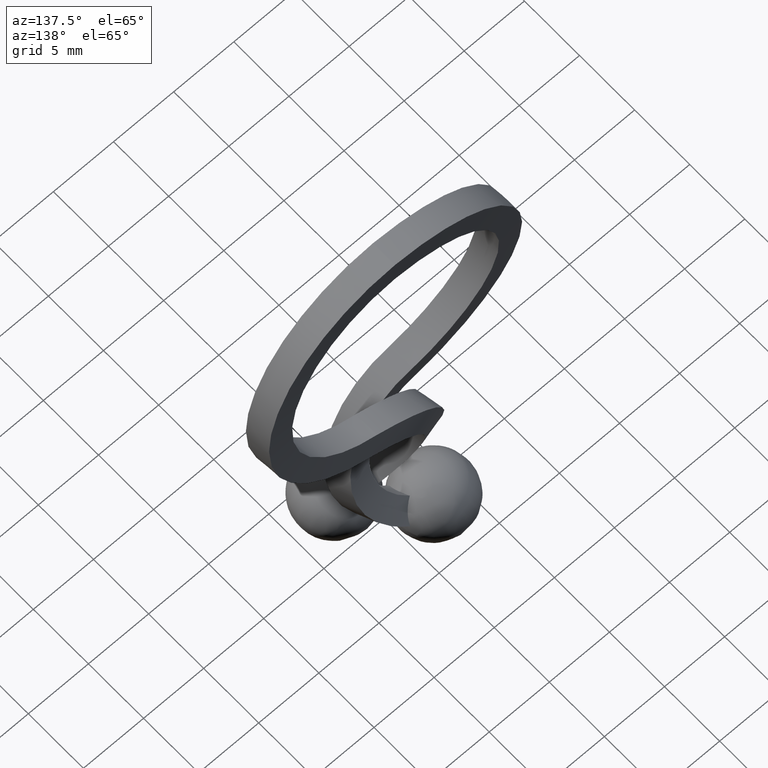
[diagram: clean part render]
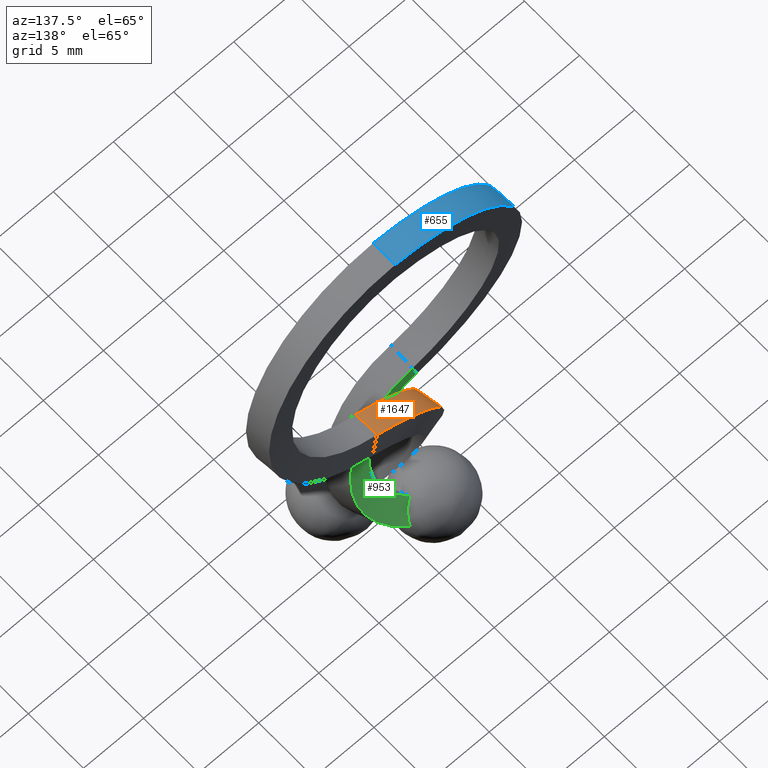
[diagram: same view with three faces highlighted in distinct colors, each labeled with its STEP entity id]
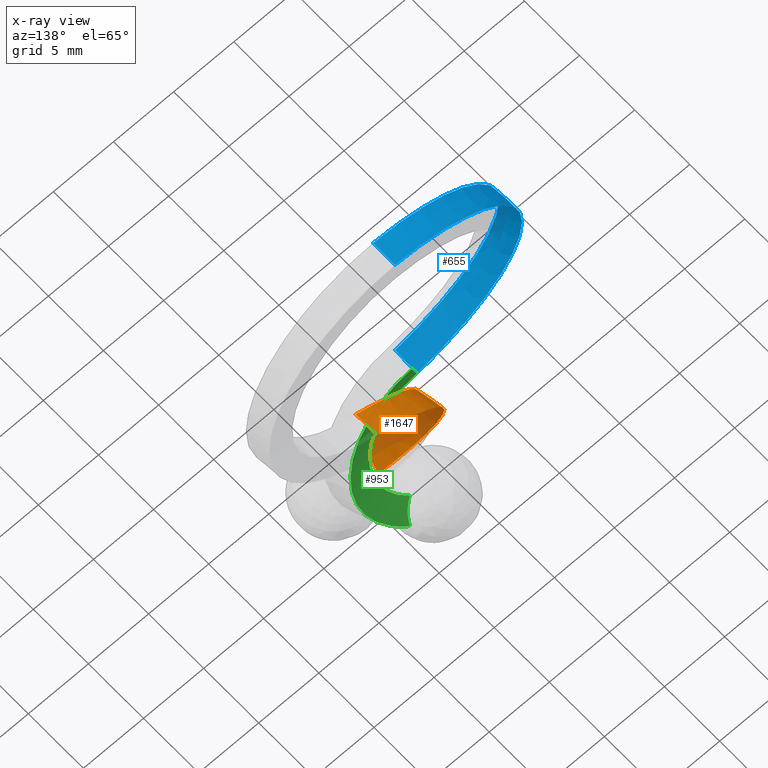
[diagram: x-ray of the same camera — body ghosted, the three highlighted faces saturated]
A machine part, auxiliary view with three faces highlighted in distinct colors.
The next image is the same camera in x-ray (body ghosted, the three faces saturated) — at least one of them is partly hidden behind the body in this view.
Their STEP definitions:

[orange] entity #1647 — the highlighted face is a freeform B-spline surface patch.
#207=CARTESIAN_POINT('',(-0.562989896993317,-2.993018793894280,-22.946073593699801));
#208=VERTEX_POINT('',#207);
#209=CARTESIAN_POINT('',(-0.674003210500367,-1.294515618744942,-24.002159655791001));
#210=VERTEX_POINT('',#209);
#211=CARTESIAN_POINT('',(-0.562989896993317,-2.993018793894280,-22.946073593699801));
#212=CARTESIAN_POINT('',(-0.625487875216806,-2.838644896647585,-22.992262270440150));
#213=CARTESIAN_POINT('',(-0.675076408019268,-2.684167226220337,-23.049990980960551));
#214=CARTESIAN_POINT('',(-0.748336848174747,-2.376842553886166,-23.189612446248589));
#215=CARTESIAN_POINT('',(-0.771128858992046,-2.227837443091896,-23.269727561428478));
#216=CARTESIAN_POINT('',(-0.785350560071650,-2.011152163125904,-23.404942437210689));
#217=CARTESIAN_POINT('',(-0.786735567627115,-1.940064008534641,-23.452531355143272));
#218=CARTESIAN_POINT('',(-0.783627493370677,-1.835152699307017,-23.527734830163389));
#219=CARTESIAN_POINT('',(-0.781716551858957,-1.800405793849225,-23.553492239177800));
#220=CARTESIAN_POINT('',(-0.776184612336564,-1.732169049288397,-23.605764375316081));
#221=CARTESIAN_POINT('',(-0.772564743885569,-1.698605095555714,-23.632329017684640));
#222=CARTESIAN_POINT('',(-0.750246223486381,-1.533481926798328,-23.767221258280770));
#223=CARTESIAN_POINT('',(-0.719019334016568,-1.409955380388857,-23.881721477389600));
#224=CARTESIAN_POINT('',(-0.674003210500367,-1.294515618744942,-24.002159655791001));
#225=B_SPLINE_CURVE_WITH_KNOTS('',3,(#211,#212,#213,#214,#215,#216,#217,#218,#219,#220,#221,#222,#223,#224),.UNSPECIFIED.,.F.,.U.,(4,2,2,2,2,2,4),(0.0,0.249999999999999,0.499999999999998,0.624999999999999,0.687500000000000,0.750000000000000,1.0),.UNSPECIFIED.);
#226=EDGE_CURVE('',#208,#210,#225,.T.);
#1181=CARTESIAN_POINT('',(2.358671733415280,1.960175868653700,-8.694603899422249));
#1182=VERTEX_POINT('',#1181);
#1202=CARTESIAN_POINT('',(2.343019980547970,-0.026249401664831,-8.919620267446240));
#1203=VERTEX_POINT('',#1202);
#1204=CARTESIAN_POINT('',(2.358671733415280,1.960175868653700,-8.694603899422249));
#1205=CARTESIAN_POINT('',(2.357048697557785,1.751445114865986,-8.718243050517476));
#1206=CARTESIAN_POINT('',(2.353708493728335,1.321887858601402,-8.766891240021826));
#1207=CARTESIAN_POINT('',(2.348404500502874,0.659749568949974,-8.841921069176765));
#1208=CARTESIAN_POINT('',(2.344845590262677,0.206337049034967,-8.893276524201962));
#1209=CARTESIAN_POINT('',(2.343019980547970,-0.026249401664831,-8.919620267446240));
#1210=B_SPLINE_CURVE_WITH_KNOTS('',3,(#1204,#1205,#1206,#1207,#1208,#1209),.UNSPECIFIED.,.F.,.U.,(4,1,1,4),(0.0,0.315074572516536,0.648407421386868,0.999492347618316),.UNSPECIFIED.);
#1211=EDGE_CURVE('',#1182,#1203,#1210,.T.);
#1540=CARTESIAN_POINT('',(2.435627884830732,-0.041603160508839,-8.893182786935876));
#1541=CARTESIAN_POINT('',(2.455156732027250,0.626669428963493,-8.813143741804492));
#1542=CARTESIAN_POINT('',(2.474685579223758,1.294942018435824,-8.733104696673111));
#1543=CARTESIAN_POINT('',(2.494214426420274,1.963214607908153,-8.653065651541725));
#1544=CARTESIAN_POINT('',(2.390609460111038,-0.038970524950691,-8.906556444197138));
#1545=CARTESIAN_POINT('',(2.410323750397735,0.629290150838547,-8.826466795996851));
#1546=CARTESIAN_POINT('',(2.430038040684427,1.297550826627786,-8.746377147796563));
#1547=CARTESIAN_POINT('',(2.449752330971123,1.965811502417020,-8.666287499596283));
#1548=CARTESIAN_POINT('',(2.347387594928677,-0.036441385811843,-8.919389829881911));
#1549=CARTESIAN_POINT('',(2.367822606064192,0.631775778087387,-8.839091803988811));
#1550=CARTESIAN_POINT('',(2.388257617199725,1.299992941986615,-8.758793778095713));
#1551=CARTESIAN_POINT('',(2.408692628335240,1.968210105885839,-8.678495752202620));
#1552=CARTESIAN_POINT('',(2.102475191818294,-0.022210721223379,-8.992530475569513));
#1553=CARTESIAN_POINT('',(2.119109092395057,0.646245320485338,-8.913292018626263));
#1554=CARTESIAN_POINT('',(2.135742992971732,1.314701362194054,-8.834053561683001));
#1555=CARTESIAN_POINT('',(2.152376893548495,1.983157403902795,-8.754815104739754));
#1556=CARTESIAN_POINT('',(1.887747769234420,-0.011900821895416,-9.065749893773564));
#1557=CARTESIAN_POINT('',(1.895283882469431,0.657066682450753,-8.989300434595419));
#1558=CARTESIAN_POINT('',(1.902819995704504,1.326034186796918,-8.912850975417436));
#1559=CARTESIAN_POINT('',(1.910356108939524,1.995001691143075,-8.836401516239256));
#1560=CARTESIAN_POINT('',(1.081361664683047,0.018325724848009,-9.376350838812126));
#1561=CARTESIAN_POINT('',(1.065054476162237,0.688311871905234,-9.308561111506537));
#1562=CARTESIAN_POINT('',(1.048747287641339,1.358298018962450,-9.240771384201091));
#1563=CARTESIAN_POINT('',(1.032440099120590,2.028284166019713,-9.172981656896008));
#1564=CARTESIAN_POINT('',(-0.268718344838542,0.024283840412859,-10.083735648048490));
#1565=CARTESIAN_POINT('',(-0.325056766544193,0.694678461067932,-10.035947807776211));
#1566=CARTESIAN_POINT('',(-0.381395188249991,1.365073081723000,-9.988159967503711));
#1567=CARTESIAN_POINT('',(-0.437733609955978,2.035467702377960,-9.940372127230786));
#1568=CARTESIAN_POINT('',(-1.385580328448778,-0.079532622516133,-11.125272625969179));
#1569=CARTESIAN_POINT('',(-1.475307469896623,0.588040997510264,-11.107435708441541));
#1570=CARTESIAN_POINT('',(-1.565034611344558,1.255614617536659,-11.089598790913721));
#1571=CARTESIAN_POINT('',(-1.654761752792166,1.923188237563209,-11.071761873386560));
#1572=CARTESIAN_POINT('',(-2.978773532074123,-0.356711011889146,-13.152719778599280));
#1573=CARTESIAN_POINT('',(-3.116453001047982,0.303088718376132,-13.193518952021680));
#1574=CARTESIAN_POINT('',(-3.254132470021838,0.962888448641411,-13.234318125444091));
#1575=CARTESIAN_POINT('',(-3.391811938996385,1.622688178906342,-13.275117298865110));
#1576=CARTESIAN_POINT('',(-3.597441051600312,-0.676096921902736,-14.828632066757219));
#1577=CARTESIAN_POINT('',(-3.754272215556001,-0.025467072602755,-14.918301897446590));
#1578=CARTESIAN_POINT('',(-3.911103379511689,0.625162776697225,-15.007971728130419));
#1579=CARTESIAN_POINT('',(-4.067934543467378,1.275792625997379,-15.097641558819779));
#1580=CARTESIAN_POINT('',(-3.713292973980882,-1.463021158562372,-18.193797158275711));
#1581=CARTESIAN_POINT('',(-3.875533448445007,-0.835230248988561,-18.382244752117931));
#1582=CARTESIAN_POINT('',(-4.037773922909133,-0.207439339414749,-18.570692345965721));
#1583=CARTESIAN_POINT('',(-4.200014397373258,0.420351570158890,-18.759139939807930));
#1584=CARTESIAN_POINT('',(-3.210171670300730,-1.928482973424104,-19.874170066155308));
#1585=CARTESIAN_POINT('',(-3.358655486367866,-1.314300855910614,-20.112264114129118));
#1586=CARTESIAN_POINT('',(-3.507139302435005,-0.700118738397124,-20.350358162100161));
#1587=CARTESIAN_POINT('',(-3.655623118500759,-0.085936620884325,-20.588452210073971));
#1588=CARTESIAN_POINT('',(-1.733592412017778,-2.613185546329875,-21.946505166967089));
#1589=CARTESIAN_POINT('',(-1.839994449289251,-2.019150614336765,-22.246318218834791));
#1590=CARTESIAN_POINT('',(-1.946396486560719,-1.425115682343662,-22.546131270703960));
#1591=CARTESIAN_POINT('',(-2.052798523832910,-0.831080750350197,-22.845944322571679));
#1592=CARTESIAN_POINT('',(-1.100306821503991,-2.843331970508324,-22.568768694557701));
#1593=CARTESIAN_POINT('',(-1.188501297285866,-2.256092915627096,-22.887223370840349));
#1594=CARTESIAN_POINT('',(-1.276695773066943,-1.668853860745329,-23.205678047121680));
#1595=CARTESIAN_POINT('',(-1.364890248849199,-1.081614805863503,-23.524132723404509));
#1596=CARTESIAN_POINT('',(-0.378939271157280,-3.056739904274532,-23.073006872211732));
#1597=CARTESIAN_POINT('',(-0.446271526822792,-2.475825852675428,-23.406687064122529));
#1598=CARTESIAN_POINT('',(-0.513603782487166,-1.894911801075551,-23.740367256030439));
#1599=CARTESIAN_POINT('',(-0.580936038152733,-1.313997749475833,-24.074047447941499));
#1600=B_SPLINE_SURFACE_WITH_KNOTS('',3,3,((#1540,#1544,#1548,#1552,#1556,#1560,#1564,#1568,#1572,#1576,#1580,#1584,#1588,#1592,#1596),(#1541,#1545,#1549,#1553,#1557,#1561,#1565,#1569,#1573,#1577,#1581,#1585,#1589,#1593,#1597),(#1542,#1546,#1550,#1554,#1558,#1562,#1566,#1570,#1574,#1578,#1582,#1586,#1590,#1594,#1598),(#1543,#1547,#1551,#1555,#1559,#1563,#1567,#1571,#1575,#1579,#1583,#1587,#1591,#1595,#1599)),.UNSPECIFIED.,.F.,.F.,.U.,(4,4),(4,2,2,1,2,2,2,4),(0.0,2.020002729036798),(0.0,0.177435660538620,0.903142439019978,3.080262774464051,5.983089888389480,11.788744116240339,17.594398344091200,20.637143195492381),.UNSPECIFIED.);
#1601=ORIENTED_EDGE('',*,*,#226,.F.);
#1602=CARTESIAN_POINT('',(2.343019980547970,-0.026249401664831,-8.919620267446240));
#1603=CARTESIAN_POINT('',(2.328873158148021,-0.025424552240254,-8.923833127507283));
#1604=CARTESIAN_POINT('',(2.314454788468011,-0.024585064959228,-8.928131868227892));
#1605=CARTESIAN_POINT('',(2.102724740778106,-0.012282224094438,-8.991361900011517));
#1606=CARTESIAN_POINT('',(1.887861882150655,-0.001958220313909,-9.064595574533961));
#1607=CARTESIAN_POINT('',(1.484445463366080,0.013149086828943,-9.220042203482507));
#1608=CARTESIAN_POINT('',(1.285685964906115,0.018477122987230,-9.305505683612408));
#1609=CARTESIAN_POINT('',(0.700010365309183,0.027742017279396,-9.584341388283615));
#1610=CARTESIAN_POINT('',(0.323713400784969,0.024944345095048,-9.800214340787839));
#1611=CARTESIAN_POINT('',(-0.748541599144377,-0.010255868453404,-10.529605563832639));
#1612=CARTESIAN_POINT('',(-1.386859524459401,-0.069622496764861,-11.125009821918690));
#1613=CARTESIAN_POINT('',(-2.980817194532098,-0.346910563989227,-13.153331408402520));
#1614=CARTESIAN_POINT('',(-3.599769519285019,-0.666432502432129,-14.829968625182101));
#1615=CARTESIAN_POINT('',(-3.715702373559793,-1.453695651395375,-18.196599076363089));
#1616=CARTESIAN_POINT('',(-3.212376982986500,-1.919359455819912,-19.877708548537061));
#1617=CARTESIAN_POINT('',(-1.778579756744054,-2.584232713626742,-21.890038046632839));
#1618=CARTESIAN_POINT('',(-1.208975882375264,-2.795219975416260,-22.466446165435251));
#1619=CARTESIAN_POINT('',(-0.562989896993317,-2.993018793894280,-22.946073593699801));
#1620=B_SPLINE_CURVE_WITH_KNOTS('',3,(#1602,#1603,#1604,#1605,#1606,#1607,#1608,#1609,#1610,#1611,#1612,#1613,#1614,#1615,#1616,#1617,#1618,#1619),.UNSPECIFIED.,.F.,.U.,(4,2,2,2,2,2,2,2,4),(-0.002363725979825,0.0,0.031250000000000,0.062500000000000,0.125000000000000,0.250000000000000,0.500000000000000,0.750000000000000,0.869828844565417),.UNSPECIFIED.);
#1621=EDGE_CURVE('',#1203,#208,#1620,.T.);
#1622=ORIENTED_EDGE('',*,*,#1621,.F.);
#1623=ORIENTED_EDGE('',*,*,#1211,.F.);
#1624=CARTESIAN_POINT('',(2.358671733415280,1.960175868653700,-8.694603899422249));
#1625=CARTESIAN_POINT('',(2.358454592620007,1.960188537752270,-8.694668553772393));
#1626=CARTESIAN_POINT('',(2.358237279756053,1.960201216811504,-8.694733259686863));
#1627=CARTESIAN_POINT('',(2.152106569537881,1.972227781500567,-8.756109950193906));
#1628=CARTESIAN_POINT('',(1.910220836533945,1.984079235097631,-8.837624558718229));
#1629=CARTESIAN_POINT('',(1.471389839082284,2.000713492751328,-9.005937561155770));
#1630=CARTESIAN_POINT('',(1.255166186935915,2.006612031072719,-9.098514206081088));
#1631=CARTESIAN_POINT('',(0.617981927692510,2.017004876738490,-9.400664737509512));
#1632=CARTESIAN_POINT('',(0.208525575026950,2.014179772950690,-9.634719548518111));
#1633=CARTESIAN_POINT('',(-0.958419201950700,1.976560978559862,-10.425883596719890));
#1634=CARTESIAN_POINT('',(-1.653391858606968,1.912452860906464,-11.072117693143040));
#1635=CARTESIAN_POINT('',(-3.389782446386424,1.612232839395255,-13.274588682967581));
#1636=CARTESIAN_POINT('',(-4.065617755851418,1.265596714494927,-15.096372623928239));
#1637=CARTESIAN_POINT('',(-4.197611814971455,0.410729745211632,-18.756376339238159));
#1638=CARTESIAN_POINT('',(-3.653422262711807,-0.095245302167541,-20.584938206898279));
#1639=CARTESIAN_POINT('',(-2.073374750477606,-0.829664972212943,-22.810295247553999));
#1640=CARTESIAN_POINT('',(-1.418662508044106,-1.070212742831414,-23.464727506197750));
#1641=CARTESIAN_POINT('',(-0.674003210500367,-1.294515618744942,-24.002159655791001));
#1642=B_SPLINE_CURVE_WITH_KNOTS('',3,(#1624,#1625,#1626,#1627,#1628,#1629,#1630,#1631,#1632,#1633,#1634,#1635,#1636,#1637,#1638,#1639,#1640,#1641),.UNSPECIFIED.,.F.,.U.,(4,2,2,2,2,2,2,2,4),(0.113561345420679,0.113594351732374,0.144844351732374,0.176094351732374,0.238594351732374,0.363594351732374,0.613594351732374,0.863594351732374,0.989350646064616),.UNSPECIFIED.);
#1643=EDGE_CURVE('',#1182,#210,#1642,.T.);
#1644=ORIENTED_EDGE('',*,*,#1643,.T.);
#1645=EDGE_LOOP('',(#1601,#1622,#1623,#1644));
#1646=FACE_OUTER_BOUND('',#1645,.T.);
#1647=ADVANCED_FACE('',(#1646),#1600,.T.);

[blue] entity #655 — the highlighted face is a freeform B-spline surface patch.
#488=CARTESIAN_POINT('',(-2.901770497624195,-0.185794630355313,-10.828303356464280));
#489=VERTEX_POINT('',#488);
#503=CARTESIAN_POINT('',(0.0,1.000000000000086,11.0));
#504=VERTEX_POINT('',#503);
#505=CARTESIAN_POINT('',(0.0,1.000000000000086,11.0));
#506=CARTESIAN_POINT('',(-2.664277957426825,1.017030261674924,10.978275083949059));
#507=CARTESIAN_POINT('',(-5.290744502438060,0.979325945925578,9.970263999405550));
#508=CARTESIAN_POINT('',(-9.271798712087030,0.812699328185356,6.460302657272890));
#509=CARTESIAN_POINT('',(-10.600032091296219,0.684426235500527,3.973371185152395));
#510=CARTESIAN_POINT('',(-11.300669097243819,0.398922150897542,-1.282481407660156));
#511=CARTESIAN_POINT('',(-10.670089990874560,0.242906599326255,-4.029027453369905));
#512=CARTESIAN_POINT('',(-8.477636952178450,0.044597705471169,-7.347805872762359));
#513=CARTESIAN_POINT('',(-7.548111985963731,-0.015490846082073,-8.320557902948611));
#514=CARTESIAN_POINT('',(-5.939456721808130,-0.091189688910444,-9.491801968244412));
#515=CARTESIAN_POINT('',(-5.368093919346840,-0.114013566193409,-9.834246619753341));
#516=CARTESIAN_POINT('',(-4.472024684063484,-0.144085488561915,-10.267691713423799));
#517=CARTESIAN_POINT('',(-4.166840199878131,-0.153417204606867,-10.398835482279560));
#518=CARTESIAN_POINT('',(-3.545728627383425,-0.170625282852517,-10.633442993420539));
#519=CARTESIAN_POINT('',(-3.218238728805475,-0.178758186316790,-10.740118986506500));
#520=CARTESIAN_POINT('',(-2.906950619990810,-0.185679167305744,-10.826860227044580));
#521=CARTESIAN_POINT('',(-2.904355745204612,-0.185736859965535,-10.827583293315090));
#522=CARTESIAN_POINT('',(-2.901770497624195,-0.185794630355313,-10.828303356464280));
#523=B_SPLINE_CURVE_WITH_KNOTS('',3,(#505,#506,#507,#508,#509,#510,#511,#512,#513,#514,#515,#516,#517,#518,#519,#520,#521,#522),.UNSPECIFIED.,.F.,.U.,(4,2,2,2,2,2,2,2,4),(0.0,0.250000000000000,0.500000000000000,0.750000000000000,0.875000000000000,0.937500000000000,0.968750000000000,1.0,1.000263757885305),.UNSPECIFIED.);
#524=EDGE_CURVE('',#504,#489,#523,.T.);
#536=CARTESIAN_POINT('',(0.0,-1.000000000000112,11.0));
#537=CARTESIAN_POINT('',(0.0,-0.333333333333381,11.0));
#538=CARTESIAN_POINT('',(0.0,0.333333333333354,11.0));
#539=CARTESIAN_POINT('',(0.0,1.000000000000086,11.0));
#540=CARTESIAN_POINT('',(-2.637885228295120,-0.982969738327417,10.981544687627860));
#541=CARTESIAN_POINT('',(-2.646682804672040,-0.316303071659281,10.980454819732801));
#542=CARTESIAN_POINT('',(-2.655480381049875,0.350363595008261,10.979364951844140));
#543=CARTESIAN_POINT('',(-2.664277957426825,1.017030261674924,10.978275083949059));
#544=CARTESIAN_POINT('',(-5.239467994413910,-1.020126013886332,9.986538549724370));
#545=CARTESIAN_POINT('',(-5.256560163755650,-0.353642027282519,9.981113699615250));
#546=CARTESIAN_POINT('',(-5.273652333096320,0.312841959321663,9.975688849510400));
#547=CARTESIAN_POINT('',(-5.290744502438060,0.979325945925578,9.970263999405550));
#548=CARTESIAN_POINT('',(-9.185083719085119,-1.184820926801678,6.515940969315320));
#549=CARTESIAN_POINT('',(-9.213988716752070,-0.518980841805845,6.497394865304020));
#550=CARTESIAN_POINT('',(-9.242893714420090,0.146859243189623,6.478848761288460));
#551=CARTESIAN_POINT('',(-9.271798712087030,0.812699328185356,6.460302657272890));
#552=CARTESIAN_POINT('',(-10.503006440144720,-1.311718578212684,4.055189194817355));
#553=CARTESIAN_POINT('',(-10.535348323861180,-0.646336973641348,4.027916524928945));
#554=CARTESIAN_POINT('',(-10.567690207579760,0.019044630929590,4.000643855040800));
#555=CARTESIAN_POINT('',(-10.600032091296219,0.684426235500527,3.973371185152395));
#556=CARTESIAN_POINT('',(-11.202739435249979,-1.594306279776000,-1.147750247733824));
#557=CARTESIAN_POINT('',(-11.235382655915300,-0.929896802885088,-1.192660634375844));
#558=CARTESIAN_POINT('',(-11.268025876578500,-0.265487325993773,-1.237571021018134));
#559=CARTESIAN_POINT('',(-11.300669097243819,0.398922150897542,-1.282481407660156));
#560=CARTESIAN_POINT('',(-10.581570824719581,-1.748793305129625,-3.867788101249905));
#561=CARTESIAN_POINT('',(-10.611077213436481,-1.084893336977444,-3.921534551956931));
#562=CARTESIAN_POINT('',(-10.640583602155520,-0.420993368825795,-3.975281002663950));
#563=CARTESIAN_POINT('',(-10.670089990874560,0.242906599326255,-4.029027453369905));
#564=CARTESIAN_POINT('',(-8.414673030104650,-1.945248730713020,-7.156175303335581));
#565=CARTESIAN_POINT('',(-8.435661004129960,-1.281966585318404,-7.220052159811000));
#566=CARTESIAN_POINT('',(-8.456648978154199,-0.618684439923516,-7.283929016286409));
#567=CARTESIAN_POINT('',(-8.477636952178450,0.044597705471169,-7.347805872762359));
#568=CARTESIAN_POINT('',(-7.495483258530710,-2.004792721078325,-8.120348397258901));
#569=CARTESIAN_POINT('',(-7.513026167674870,-1.341692096079620,-8.187084899155831));
#570=CARTESIAN_POINT('',(-7.530569076819559,-0.678591471080912,-8.253821401051679));
#571=CARTESIAN_POINT('',(-7.548111985963731,-0.015490846082073,-8.320557902948611));
#572=CARTESIAN_POINT('',(-5.904125346697549,-2.079833666883965,-9.281824070482571));
#573=CARTESIAN_POINT('',(-5.915902471734500,-1.416952340892770,-9.351816703069670));
#574=CARTESIAN_POINT('',(-5.927679596771180,-0.754071014901573,-9.421809335657310));
#575=CARTESIAN_POINT('',(-5.939456721808130,-0.091189688910444,-9.491801968244412));
#576=CARTESIAN_POINT('',(-5.338821647375529,-2.102464732693170,-9.621528485664451));
#577=CARTESIAN_POINT('',(-5.348579071365970,-1.439647677193228,-9.692434530360739));
#578=CARTESIAN_POINT('',(-5.358336495356410,-0.776830621693318,-9.763340575057040));
#579=CARTESIAN_POINT('',(-5.368093919346840,-0.114013566193409,-9.834246619753341));
#580=CARTESIAN_POINT('',(-4.452135781385990,-2.132291823281415,-10.051703333782839));
#581=CARTESIAN_POINT('',(-4.458765415611826,-1.469556378374924,-10.123699460329821));
#582=CARTESIAN_POINT('',(-4.465395049837655,-0.806820933468419,-10.195695586876820));
#583=CARTESIAN_POINT('',(-4.472024684063484,-0.144085488561915,-10.267691713423799));
#584=CARTESIAN_POINT('',(-4.150128149767495,-2.141549308357980,-10.181896707046000));
#585=CARTESIAN_POINT('',(-4.155698833137706,-1.478838607107644,-10.254209632123841));
#586=CARTESIAN_POINT('',(-4.161269516507920,-0.816127905857272,-10.326522557201701));
#587=CARTESIAN_POINT('',(-4.166840199878131,-0.153417204606867,-10.398835482279560));
#588=CARTESIAN_POINT('',(-3.535444974488720,-2.158624251896780,-10.414890179787539));
#589=CARTESIAN_POINT('',(-3.538872858786955,-1.495957928881990,-10.487741117665200));
#590=CARTESIAN_POINT('',(-3.542300743085190,-0.833291605867237,-10.560592055542880));
#591=CARTESIAN_POINT('',(-3.545728627383425,-0.170625282852517,-10.633442993420539));
#592=CARTESIAN_POINT('',(-3.212845618328925,-2.166672747583700,-10.520643822600039));
#593=CARTESIAN_POINT('',(-3.214643321821110,-1.504034560494765,-10.593802210568860));
#594=CARTESIAN_POINT('',(-3.216441025313290,-0.841396373405776,-10.666960598537679));
#595=CARTESIAN_POINT('',(-3.218238728805475,-0.178758186316790,-10.740118986506500));
#596=CARTESIAN_POINT('',(-2.844237487949729,-2.174881265921541,-10.623594984782510));
#597=CARTESIAN_POINT('',(-2.845379315339685,-1.512253287629505,-10.696856951443610));
#598=CARTESIAN_POINT('',(-2.846521142729641,-0.849625309337471,-10.770118918104700));
#599=CARTESIAN_POINT('',(-2.847662970119601,-0.186997331045441,-10.843380884765820));
#600=CARTESIAN_POINT('',(-2.787758889567327,-2.176135026857911,-10.639297621780720));
#601=CARTESIAN_POINT('',(-2.789068406493626,-1.513503945409978,-10.712524179597141));
#602=CARTESIAN_POINT('',(-2.790377923419924,-0.850872863962047,-10.785750737413551));
#603=CARTESIAN_POINT('',(-2.791687440346222,-0.188241782514116,-10.858977295229970));
#604=CARTESIAN_POINT('',(-2.727347731590554,-2.177477842457661,-10.656125418534639));
#605=CARTESIAN_POINT('',(-2.728613392603219,-1.514847830001080,-10.729365897464699));
#606=CARTESIAN_POINT('',(-2.729879053615884,-0.852217817544496,-10.802606376394751));
#607=CARTESIAN_POINT('',(-2.731144714628546,-0.189587805087914,-10.875846855324800));
#608=B_SPLINE_SURFACE_WITH_KNOTS('',3,3,((#536,#540,#544,#548,#552,#556,#560,#564,#568,#572,#576,#580,#584,#588,#592,#596,#600,#604),(#537,#541,#545,#549,#553,#557,#561,#565,#569,#573,#577,#581,#585,#589,#593,#597,#601,#605),(#538,#542,#546,#550,#554,#558,#562,#566,#570,#574,#578,#582,#586,#590,#594,#598,#602,#606),(#539,#543,#547,#551,#555,#559,#563,#567,#571,#575,#579,#583,#587,#591,#595,#599,#603,#607)),.UNSPECIFIED.,.F.,.F.,.U.,(4,4),(4,2,2,2,2,2,2,2,4),(0.0,2.000000000000199),(0.0,8.068239731317336,16.136479462634671,24.204719193952009,28.238839059610680,30.255898992440009,31.264428958854680,32.272958925269343,32.475176107001722),.UNSPECIFIED.);
#609=CARTESIAN_POINT('',(-2.918086088846110,-2.173184630067220,-10.602971046314000));
#610=VERTEX_POINT('',#609);
#611=CARTESIAN_POINT('',(-2.918086088846110,-2.173184630067220,-10.602971046314000));
#612=CARTESIAN_POINT('',(-2.916354178478342,-2.007583351871401,-10.621855719508041));
#613=CARTESIAN_POINT('',(-2.914716159038839,-1.841977857999221,-10.640713084444419));
#614=CARTESIAN_POINT('',(-2.913175780505263,-1.676368196790214,-10.659542337351571));
#615=CARTESIAN_POINT('',(-2.911635401945732,-1.510758532790647,-10.678371590576001));
#616=CARTESIAN_POINT('',(-2.910192658464898,-1.345144638424461,-10.697172739980511));
#617=CARTESIAN_POINT('',(-2.908853606032458,-1.179526489220630,-10.715944330896340));
#618=CARTESIAN_POINT('',(-2.906175543177919,-0.848295386781713,-10.753486923803401));
#619=CARTESIAN_POINT('',(-2.904047142048638,-0.517042013293782,-10.790874764776600));
#620=CARTESIAN_POINT('',(-2.901770497624195,-0.185794630355313,-10.828303356464280));
#621=B_SPLINE_CURVE_WITH_KNOTS('',3,(#611,#612,#613,#614,#615,#616,#617,#618,#619,#620),.UNSPECIFIED.,.F.,.U.,(4,3,3,4),(0.0,0.000500044290662,0.001000088595888,0.002000161805868),.UNSPECIFIED.);
#622=EDGE_CURVE('',#610,#489,#621,.T.);
#623=ORIENTED_EDGE('',*,*,#622,.F.);
#624=CARTESIAN_POINT('',(0.0,-1.000000000000086,11.0));
#625=VERTEX_POINT('',#624);
#626=CARTESIAN_POINT('',(0.0,-1.000000000000086,11.0));
#627=CARTESIAN_POINT('',(-2.637885254668595,-0.982968862560222,10.981544523933151));
#628=CARTESIAN_POINT('',(-5.239468115913781,-1.020121979321178,9.986537795599750));
#629=CARTESIAN_POINT('',(-9.185084123649300,-1.184807492708972,6.515938458268969));
#630=CARTESIAN_POINT('',(-10.503007031348680,-1.311698946497510,4.055185525336440));
#631=CARTESIAN_POINT('',(-11.202740401248340,-1.594274202513206,-1.147756243486239));
#632=CARTESIAN_POINT('',(-10.581571977277010,-1.748755032924802,-3.867795254935917));
#633=CARTESIAN_POINT('',(-8.414674394746941,-1.945203415947330,-7.156183773388555));
#634=CARTESIAN_POINT('',(-7.495484682660098,-2.004745430964460,-8.120357236536002));
#635=CARTESIAN_POINT('',(-5.904126837887027,-2.079784149950465,-9.281833325987806));
#636=CARTESIAN_POINT('',(-5.338823157229466,-2.102414595981312,-9.621537857016127));
#637=CARTESIAN_POINT('',(-4.452137313251739,-2.132240955638183,-10.051712841757301));
#638=CARTESIAN_POINT('',(-4.150129687975393,-2.141498230115252,-10.181906254384860));
#639=CARTESIAN_POINT('',(-3.539541975815219,-2.158459057230759,-10.413347426025229));
#640=CARTESIAN_POINT('',(-3.221441999331810,-2.166406587277719,-10.517833133862940));
#641=CARTESIAN_POINT('',(-2.918086088846110,-2.173184630067220,-10.602971046314000));
#642=B_SPLINE_CURVE_WITH_KNOTS('',3,(#626,#627,#628,#629,#630,#631,#632,#633,#634,#635,#636,#637,#638,#639,#640,#641),.UNSPECIFIED.,.F.,.U.,(4,2,2,2,2,2,2,4),(0.0,0.250000000000000,0.500000000000000,0.750000000000000,0.875000000000000,0.937500000000000,0.968750000000000,0.999583580949750),.UNSPECIFIED.);
#643=EDGE_CURVE('',#625,#610,#642,.T.);
#644=ORIENTED_EDGE('',*,*,#643,.F.);
#645=CARTESIAN_POINT('',(0.0,1.000000000000086,11.0));
#646=CARTESIAN_POINT('',(0.0,0.333333333333381,11.0));
#647=CARTESIAN_POINT('',(0.0,-0.333333333333354,11.0));
#648=CARTESIAN_POINT('',(0.0,-1.000000000000086,11.0));
#649=QUASI_UNIFORM_CURVE('',3,(#645,#646,#647,#648),.UNSPECIFIED.,.F.,.U.);
#650=EDGE_CURVE('',#504,#625,#649,.T.);
#651=ORIENTED_EDGE('',*,*,#650,.F.);
#652=ORIENTED_EDGE('',*,*,#524,.T.);
#653=EDGE_LOOP('',(#623,#644,#651,#652));
#654=FACE_OUTER_BOUND('',#653,.T.);
#655=ADVANCED_FACE('',(#654),#608,.T.);

[green] entity #953 — the highlighted face is a freeform B-spline surface patch.
#88=CARTESIAN_POINT('',(0.562989896993317,2.993018793894280,-22.946073593699801));
#89=VERTEX_POINT('',#88);
#128=CARTESIAN_POINT('',(-0.318826998031104,1.991292330400900,-21.365611254917500));
#129=VERTEX_POINT('',#128);
#143=CARTESIAN_POINT('',(-0.318826998031104,1.991292330400900,-21.365611254917500));
#144=CARTESIAN_POINT('',(-0.254987021193123,2.027606866331576,-21.415365773943190));
#145=CARTESIAN_POINT('',(-0.194190312748543,2.064897113913454,-21.467668564391371));
#146=CARTESIAN_POINT('',(-0.078609582324108,2.141398444247726,-21.577313679062140));
#147=CARTESIAN_POINT('',(-0.023749002954571,2.180669582220871,-21.634745300141720));
#148=CARTESIAN_POINT('',(0.131193199032403,2.301055194665985,-21.814124364339609));
#149=CARTESIAN_POINT('',(0.219965570910712,2.383308522431404,-21.940992873367041));
#150=CARTESIAN_POINT('',(0.332055683822324,2.509865839651788,-22.141682061896599));
#151=CARTESIAN_POINT('',(0.365884398976530,2.552586264016554,-22.210319979133669));
#152=CARTESIAN_POINT('',(0.426313912798095,2.639188689276759,-22.351113633898290));
#153=CARTESIAN_POINT('',(0.452999293889169,2.683262658169256,-22.423591017506070));
#154=CARTESIAN_POINT('',(0.520796711269644,2.815548652972138,-22.643336727853569));
#155=CARTESIAN_POINT('',(0.550034096460363,2.903981628331271,-22.793129962072829));
#156=CARTESIAN_POINT('',(0.562989896993317,2.993018793894280,-22.946073593699801));
#157=B_SPLINE_CURVE_WITH_KNOTS('',3,(#143,#144,#145,#146,#147,#148,#149,#150,#151,#152,#153,#154,#155,#156),.UNSPECIFIED.,.F.,.U.,(4,2,2,2,2,2,4),(0.0,0.124999999999999,0.249999999999998,0.499999999999998,0.624999999999999,0.749999999999999,1.0),.UNSPECIFIED.);
#158=EDGE_CURVE('',#129,#89,#157,.T.);
#378=CARTESIAN_POINT('',(-2.343019980547970,0.026249401664831,-8.919620267446240));
#379=VERTEX_POINT('',#378);
#488=CARTESIAN_POINT('',(-2.901770497624195,-0.185794630355313,-10.828303356464280));
#489=VERTEX_POINT('',#488);
#490=CARTESIAN_POINT('',(-2.343019980547970,0.026249401664831,-8.919620267446240));
#491=CARTESIAN_POINT('',(-2.390476096541876,0.008236811523220,-9.081758698906494));
#492=CARTESIAN_POINT('',(-2.437932200781543,-0.009775782775392,-9.243897133344509));
#493=CARTESIAN_POINT('',(-2.485389682380470,-0.027788348679909,-9.406035168364841));
#494=CARTESIAN_POINT('',(-2.532847163982464,-0.045800914585591,-9.568173203395647));
#495=CARTESIAN_POINT('',(-2.580306013627685,-0.063813452317270,-9.730310841732020));
#496=CARTESIAN_POINT('',(-2.627767853168932,-0.081825923876188,-9.892447613443228));
#497=CARTESIAN_POINT('',(-2.719086018244425,-0.116482520989441,-10.204404179540180));
#498=CARTESIAN_POINT('',(-2.810414561498153,-0.151138889379695,-10.516357738549470));
#499=CARTESIAN_POINT('',(-2.901770497624195,-0.185794630355313,-10.828303356464280));
#500=B_SPLINE_CURVE_WITH_KNOTS('',3,(#490,#491,#492,#493,#494,#495,#496,#497,#498,#499),.UNSPECIFIED.,.F.,.U.,(4,3,3,4),(0.0,0.000509692035208,0.001019384070476,0.002000048577367),.UNSPECIFIED.);
#501=EDGE_CURVE('',#379,#489,#500,.T.);
#808=CARTESIAN_POINT('',(-2.343019980547970,0.026249401664831,-8.919620267446240));
#809=CARTESIAN_POINT('',(-2.328873158148021,0.025424552240254,-8.923833127507283));
#810=CARTESIAN_POINT('',(-2.314454788468011,0.024585064959228,-8.928131868227892));
#811=CARTESIAN_POINT('',(-2.102724740778106,0.012282224094438,-8.991361900011517));
#812=CARTESIAN_POINT('',(-1.887861882150655,0.001958220313909,-9.064595574533961));
#813=CARTESIAN_POINT('',(-1.484445463366080,-0.013149086828943,-9.220042203482507));
#814=CARTESIAN_POINT('',(-1.285685964906115,-0.018477122987230,-9.305505683612408));
#815=CARTESIAN_POINT('',(-0.700010365309183,-0.027742017279396,-9.584341388283615));
#816=CARTESIAN_POINT('',(-0.323713400784969,-0.024944345095048,-9.800214340787839));
#817=CARTESIAN_POINT('',(0.748541599144377,0.010255868453404,-10.529605563832639));
#818=CARTESIAN_POINT('',(1.386859524459401,0.069622496764861,-11.125009821918690));
#819=CARTESIAN_POINT('',(2.980817194532098,0.346910563989227,-13.153331408402520));
#820=CARTESIAN_POINT('',(3.599769519285019,0.666432502432129,-14.829968625182101));
#821=CARTESIAN_POINT('',(3.715702373559793,1.453695651395375,-18.196599076363089));
#822=CARTESIAN_POINT('',(3.212376982986500,1.919359455819912,-19.877708548537061));
#823=CARTESIAN_POINT('',(1.778579756744054,2.584232713626742,-21.890038046632839));
#824=CARTESIAN_POINT('',(1.208975882375264,2.795219975416260,-22.466446165435251));
#825=CARTESIAN_POINT('',(0.562989896993317,2.993018793894280,-22.946073593699801));
#826=B_SPLINE_CURVE_WITH_KNOTS('',3,(#808,#809,#810,#811,#812,#813,#814,#815,#816,#817,#818,#819,#820,#821,#822,#823,#824,#825),.UNSPECIFIED.,.F.,.U.,(4,2,2,2,2,2,2,2,4),(-0.002363725979825,0.0,0.031250000000000,0.062500000000000,0.125000000000000,0.250000000000000,0.500000000000000,0.750000000000000,0.869828844565417),.UNSPECIFIED.);
#827=EDGE_CURVE('',#379,#89,#826,.T.);
#854=CARTESIAN_POINT('',(-3.031046235579531,-0.178247301782421,-10.789846652980369));
#855=CARTESIAN_POINT('',(-2.832658385266442,-0.108273610588086,-10.157232528305631));
#856=CARTESIAN_POINT('',(-2.634270534953358,-0.038299919393754,-9.524618403630928));
#857=CARTESIAN_POINT('',(-2.435882684640277,0.031673771800581,-8.892004278956225));
#858=CARTESIAN_POINT('',(-2.984612750295062,-0.180958383505011,-10.803658750317339));
#859=CARTESIAN_POINT('',(-2.786701742206361,-0.110958237086650,-10.170896968513199));
#860=CARTESIAN_POINT('',(-2.588790734117672,-0.040958090668294,-9.538135186709090));
#861=CARTESIAN_POINT('',(-2.390879726028985,0.029042055750066,-8.905373404904996));
#862=CARTESIAN_POINT('',(-2.935828042283705,-0.183806793798505,-10.818170035292169));
#863=CARTESIAN_POINT('',(-2.739778221201616,-0.113699811211099,-10.184846938185739));
#864=CARTESIAN_POINT('',(-2.543728400119547,-0.043592828623699,-9.551523841079373));
#865=CARTESIAN_POINT('',(-2.347678579037474,0.026514153963706,-8.918200743973044));
#866=CARTESIAN_POINT('',(-2.720222783918400,-0.196391471020903,-10.882319581714119));
#867=CARTESIAN_POINT('',(-2.514389286534440,-0.126834090048751,-10.251997511912620));
#868=CARTESIAN_POINT('',(-2.308555789150435,-0.057276709076579,-9.621675442110979));
#869=CARTESIAN_POINT('',(-2.102722291766435,0.012280671895573,-8.991353372309149));
#870=CARTESIAN_POINT('',(-2.575560613172110,-0.203242635793602,-10.932044718042460));
#871=CARTESIAN_POINT('',(-2.346326892726685,-0.134842863874018,-10.309558849340020));
#872=CARTESIAN_POINT('',(-2.117093172281220,-0.066443091954435,-9.687072980637739));
#873=CARTESIAN_POINT('',(-1.887859451835715,0.001956679965148,-9.064587111935468));
#874=CARTESIAN_POINT('',(-2.264002229312440,-0.215072593945432,-11.051413841332041));
#875=CARTESIAN_POINT('',(-2.004149176609935,-0.147765263628792,-10.440953852134720));
#876=CARTESIAN_POINT('',(-1.744296123907475,-0.080457933312152,-9.830493862937249));
#877=CARTESIAN_POINT('',(-1.484443071205060,-0.013150602995512,-9.220033873739761));
#878=CARTESIAN_POINT('',(-2.110486528339925,-0.219270399111323,-11.117076609692560));
#879=CARTESIAN_POINT('',(-1.835552216577240,-0.152339808168684,-10.513216881321300));
#880=CARTESIAN_POINT('',(-1.560617904814390,-0.085409217226035,-9.909357152950072));
#881=CARTESIAN_POINT('',(-1.285683593051620,-0.018478626283397,-9.305497424579000));
#882=CARTESIAN_POINT('',(-1.658086798651795,-0.226678837077917,-11.331403843927680));
#883=CARTESIAN_POINT('',(-1.338727218394392,-0.160367051299382,-10.749047013813859));
#884=CARTESIAN_POINT('',(-1.019367638137330,-0.094055265520870,-10.166690183700061));
#885=CARTESIAN_POINT('',(-0.700008057880100,-0.027743479742336,-9.584333353585901));
#886=CARTESIAN_POINT('',(-1.367362590013204,-0.224692677029262,-11.497450069663060));
#887=CARTESIAN_POINT('',(-1.019478773672042,-0.158110377141968,-10.931702203760700));
#888=CARTESIAN_POINT('',(-0.671594957330889,-0.091528077254717,-10.365954337858019));
#889=CARTESIAN_POINT('',(-0.323711140989563,-0.024945777367466,-9.800206471955329));
#890=CARTESIAN_POINT('',(-0.538768817038835,-0.198041538197333,-12.058784693326860));
#891=CARTESIAN_POINT('',(-0.109664643429024,-0.128609513959701,-11.549055873966200));
#892=CARTESIAN_POINT('',(0.319439530180779,-0.059177489721987,-11.039327054606220));
#893=CARTESIAN_POINT('',(0.748543703790248,0.010254534515727,-10.529598235246240));
#894=CARTESIAN_POINT('',(-0.045252883617212,-0.152562491118261,-12.517358232088700));
#895=CARTESIAN_POINT('',(0.432118580705584,-0.078501247835988,-12.053239791502421));
#896=CARTESIAN_POINT('',(0.909490045028033,-0.004440004553886,-11.589121350916139));
#897=CARTESIAN_POINT('',(1.386861509350822,0.069621238728302,-11.125002910329201));
#898=CARTESIAN_POINT('',(1.187958319515892,0.060489239282566,-14.080416516568020));
#899=CARTESIAN_POINT('',(1.785578475795645,0.155962677459482,-13.771386297228119));
#900=CARTESIAN_POINT('',(2.383198632076065,0.251436115636734,-13.462356077888240));
#901=CARTESIAN_POINT('',(2.980818788355810,0.346909553813818,-13.153325858549699));
#902=CARTESIAN_POINT('',(1.668210497456420,0.306543402091836,-15.373505812691549));
#903=CARTESIAN_POINT('',(2.312063935028910,0.426506162814358,-15.192325251855699));
#904=CARTESIAN_POINT('',(2.955917372601390,0.546468923536540,-15.011144691017151));
#905=CARTESIAN_POINT('',(3.599770810173870,0.666431684258722,-14.829964130178601));
#906=CARTESIAN_POINT('',(1.762909135175490,0.913430108636899,-17.971670407942650));
#907=CARTESIAN_POINT('',(2.413840453101365,1.093518471749250,-18.046645800390749));
#908=CARTESIAN_POINT('',(3.064771771027230,1.273606834861940,-18.121621192841499));
#909=CARTESIAN_POINT('',(3.715703088953105,1.453695197974626,-18.196596585292301));
#910=CARTESIAN_POINT('',(1.377105707061504,1.272661218157010,-19.269889749202200));
#911=CARTESIAN_POINT('',(1.988862947153135,1.488227203500672,-19.472495499889600));
#912=CARTESIAN_POINT('',(2.600620187246110,1.703793188843995,-19.675101250577050));
#913=CARTESIAN_POINT('',(3.212377427337735,1.919359174187320,-19.877707001261751));
#914=CARTESIAN_POINT('',(0.258158140342515,1.793157355170532,-20.847141659368049));
#915=CARTESIAN_POINT('',(0.758202217041866,2.059985297542053,-21.204265719632481));
#916=CARTESIAN_POINT('',(1.258246293740533,2.326813239913740,-21.561389779896889));
#917=CARTESIAN_POINT('',(1.758290370439877,2.593641182285430,-21.918513840162682));
#918=CARTESIAN_POINT('',(-0.203368077219351,1.963037535131555,-21.309674210169810));
#919=CARTESIAN_POINT('',(0.250761868283334,2.246571961243377,-21.711999446169202));
#920=CARTESIAN_POINT('',(0.704891813785556,2.530106387356202,-22.114324682167879));
#921=CARTESIAN_POINT('',(1.159021759289556,2.813640813467073,-22.516649918172959));
#922=CARTESIAN_POINT('',(-0.728212988242898,2.121558836077095,-21.690190398901969));
#923=CARTESIAN_POINT('',(-0.326169757955065,2.420658769189115,-22.129580227879678));
#924=CARTESIAN_POINT('',(0.075873472332585,2.719758702302512,-22.568970056856340));
#925=CARTESIAN_POINT('',(0.477916702622394,3.018858635412981,-23.008359885841561));
#926=B_SPLINE_SURFACE_WITH_KNOTS('',3,3,((#854,#858,#862,#866,#870,#874,#878,#882,#886,#890,#894,#898,#902,#906,#910,#914,#918,#922),(#855,#859,#863,#867,#871,#875,#879,#883,#887,#891,#895,#899,#903,#907,#911,#915,#919,#923),(#856,#860,#864,#868,#872,#876,#880,#884,#888,#892,#896,#900,#904,#908,#912,#916,#920,#924),(#857,#861,#865,#869,#873,#877,#881,#885,#889,#893,#897,#901,#905,#909,#913,#917,#921,#925)),.UNSPECIFIED.,.F.,.F.,.U.,(4,4),(4,2,2,2,2,2,2,2,4),(0.0,2.000023046402882),(0.0,0.161261682496622,0.820989826852616,1.480717971208610,2.800174259920598,5.439086837344573,10.716911992192530,15.994737147040480,18.634964047469360),.UNSPECIFIED.);
#927=ORIENTED_EDGE('',*,*,#158,.F.);
#928=CARTESIAN_POINT('',(-2.901770497624195,-0.185794630355313,-10.828303356464280));
#929=CARTESIAN_POINT('',(-2.898981045707082,-0.185957514785972,-10.829133225665160));
#930=CARTESIAN_POINT('',(-2.896216127516216,-0.186118904204761,-10.829955862708930));
#931=CARTESIAN_POINT('',(-2.720222783918400,-0.196391471020903,-10.882319581714119));
#932=CARTESIAN_POINT('',(-2.575560613172110,-0.203242635793602,-10.932044718042460));
#933=CARTESIAN_POINT('',(-2.264002229312440,-0.215072593945432,-11.051413841332041));
#934=CARTESIAN_POINT('',(-2.110486528339925,-0.219270399111323,-11.117076609692560));
#935=CARTESIAN_POINT('',(-1.658086798651795,-0.226678837077917,-11.331403843927680));
#936=CARTESIAN_POINT('',(-1.367362590013204,-0.224692677029262,-11.497450069663060));
#937=CARTESIAN_POINT('',(-0.538768817038835,-0.198041538197333,-12.058784693326860));
#938=CARTESIAN_POINT('',(-0.045252883617212,-0.152562491118261,-12.517358232088700));
#939=CARTESIAN_POINT('',(1.187958319515892,0.060489239282566,-14.080416516568020));
#940=CARTESIAN_POINT('',(1.668210497456420,0.306543402091836,-15.373505812691549));
#941=CARTESIAN_POINT('',(1.762909135175490,0.913430108636899,-17.971670407942650));
#942=CARTESIAN_POINT('',(1.377105707061504,1.272661218157010,-19.269889749202200));
#943=CARTESIAN_POINT('',(0.358541591760554,1.746462406955594,-20.705642633669822));
#944=CARTESIAN_POINT('',(0.038576748783653,1.871359645571904,-21.056198669892730));
#945=CARTESIAN_POINT('',(-0.318826998031104,1.991292330400900,-21.365611254917500));
#946=B_SPLINE_CURVE_WITH_KNOTS('',3,(#928,#929,#930,#931,#932,#933,#934,#935,#936,#937,#938,#939,#940,#941,#942,#943,#944,#945),.UNSPECIFIED.,.F.,.U.,(4,2,2,2,2,2,2,2,4),(-0.000493855923331,0.0,0.031250000000000,0.062500000000000,0.125000000000000,0.250000000000000,0.500000000000000,0.750000000000000,0.841414528428668),.UNSPECIFIED.);
#947=EDGE_CURVE('',#489,#129,#946,.T.);
#948=ORIENTED_EDGE('',*,*,#947,.F.);
#949=ORIENTED_EDGE('',*,*,#501,.F.);
#950=ORIENTED_EDGE('',*,*,#827,.T.);
#951=EDGE_LOOP('',(#927,#948,#949,#950));
#952=FACE_OUTER_BOUND('',#951,.T.);
#953=ADVANCED_FACE('',(#952),#926,.T.);